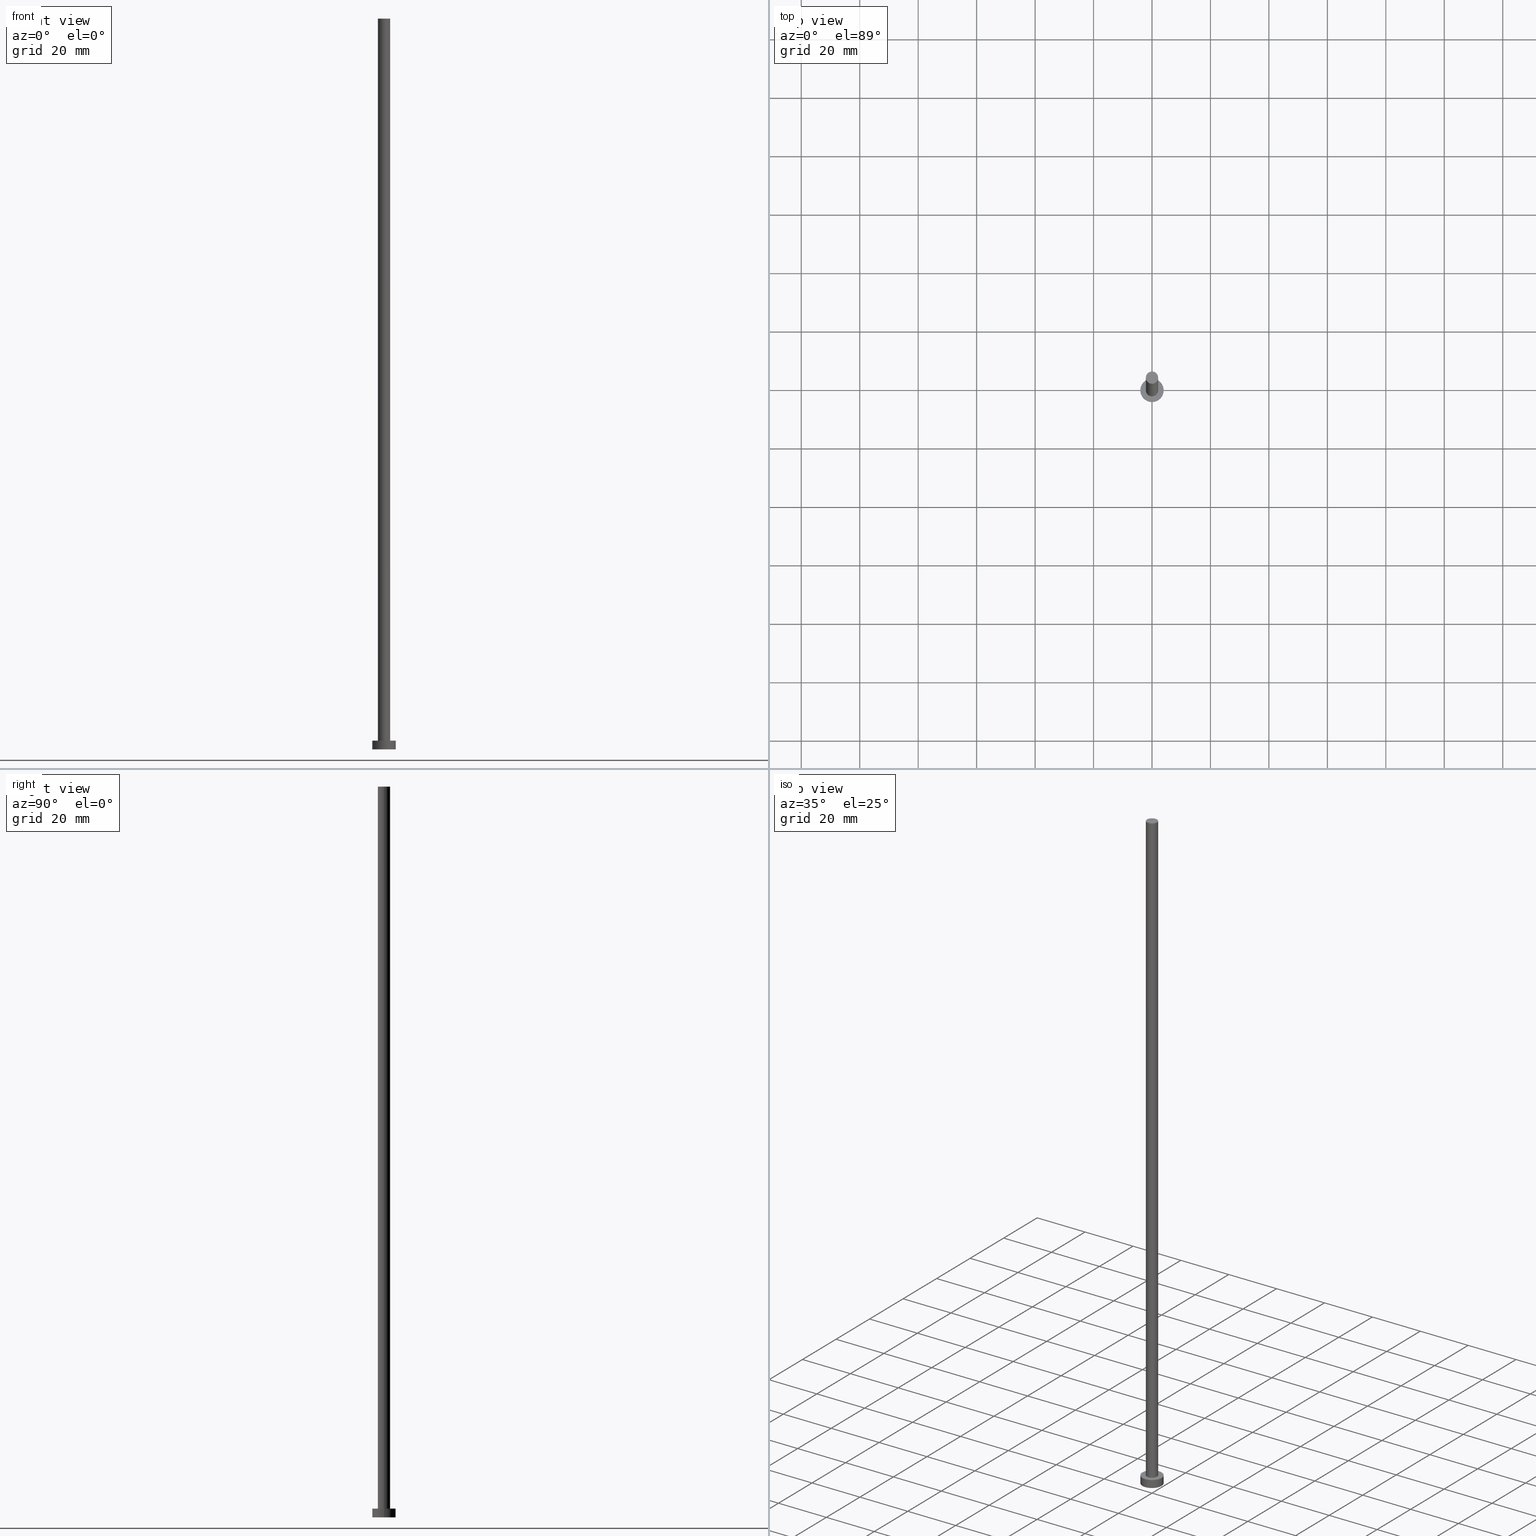
[diagram: canonical four-view strip — front | top / right | iso, engineering-drawing reading convention]
A machine part, canonical four-view strip (front | top / right | iso — engineering-drawing reading convention). The complete STEP part file that produces these views, byte-faithful:
ISO-10303-21;
HEADER;
FILE_DESCRIPTION (( 'STEP AP203' ),
    '1' );
FILE_NAME ('2389.STEP',
    '2023-02-13T13:56:01',
    ( '' ),
    ( '' ),
    'SwSTEP 2.0',
    'SolidWorks 2019',
    '' );
FILE_SCHEMA (( 'CONFIG_CONTROL_DESIGN' ));
ENDSEC;

DATA;
#1 = DIRECTION ( 'NONE',  ( -0.000000000000000000, -0.000000000000000000, -1.000000000000000000 ) ) ;
#2 = DIRECTION ( 'NONE',  ( -0.000000000000000000, -0.000000000000000000, -1.000000000000000000 ) ) ;
#3 = CYLINDRICAL_SURFACE ( 'NONE', #86, 4.000000000000000000 ) ;
#4 = CIRCLE ( 'NONE', #167, 2.100000000000000089 ) ;
#5 = CALENDAR_DATE ( 2023, 13, 2 ) ;
#6 = APPROVAL_STATUS ( 'not_yet_approved' ) ;
#7 = PERSON_AND_ORGANIZATION ( #184, #26 ) ;
#8 = PERSON_AND_ORGANIZATION ( #184, #26 ) ;
#9 = EDGE_CURVE ( 'NONE', #200, #100, #247, .T. ) ;
#10 = CARTESIAN_POINT ( 'NONE',  ( 0.000000000000000000, 0.000000000000000000, 250.0000000000000000 ) ) ;
#11 = AXIS2_PLACEMENT_3D ( 'NONE', #98, #170, #246 ) ;
#12 = ORIENTED_EDGE ( 'NONE', *, *, #9, .F. ) ;
#13 = PLANE ( 'NONE',  #11 ) ;
#14 = VERTEX_POINT ( 'NONE', #118 ) ;
#15 = DATE_AND_TIME ( #41, #245 ) ;
#16 = ORIENTED_EDGE ( 'NONE', *, *, #189, .T. ) ;
#17 = CYLINDRICAL_SURFACE ( 'NONE', #244, 2.100000000000000089 ) ;
#18 = APPROVAL_ROLE ( '' ) ;
#19 = ORIENTED_EDGE ( 'NONE', *, *, #71, .F. ) ;
#20 = CC_DESIGN_SECURITY_CLASSIFICATION ( #52, ( #186 ) ) ;
#21 = DATE_AND_TIME ( #5, #90 ) ;
#22 = AXIS2_PLACEMENT_3D ( 'NONE', #131, #217, #33 ) ;
#23 = AXIS2_PLACEMENT_3D ( 'NONE', #79, #145, #193 ) ;
#24 = LOCAL_TIME ( 14, 56, 1.000000000000000000, #48 ) ;
#25 = ADVANCED_BREP_SHAPE_REPRESENTATION ( '2389', ( #54, #140 ), #173 ) ;
#26 = ORGANIZATION ( 'NEUR�EN�', 'NEUR�EN�', '' ) ;
#27 = ADVANCED_FACE ( 'NONE', ( #144 ), #17, .T. ) ;
#28 = DIRECTION ( 'NONE',  ( 0.000000000000000000, 0.000000000000000000, 1.000000000000000000 ) ) ;
#29 = LINE ( 'NONE', #214, #239 ) ;
#30 = EDGE_CURVE ( 'NONE', #253, #14, #4, .T. ) ;
#31 = EDGE_LOOP ( 'NONE', ( #60, #204, #152, #165 ) ) ;
#32 = FACE_BOUND ( 'NONE', #124, .T. ) ;
#33 = DIRECTION ( 'NONE',  ( 1.000000000000000000, 0.000000000000000000, 0.000000000000000000 ) ) ;
#34 = PRODUCT_RELATED_PRODUCT_CATEGORY ( 'detail', '', ( #83 ) ) ;
#35 = UNCERTAINTY_MEASURE_WITH_UNIT (LENGTH_MEASURE( 1.000000000000000082E-05 ), #216, 'distance_accuracy_value', 'NONE');
#36 = DIRECTION ( 'NONE',  ( -0.000000000000000000, -0.000000000000000000, -1.000000000000000000 ) ) ;
#37 = DATE_TIME_ROLE ( 'creation_date' ) ;
#38 = PERSON_AND_ORGANIZATION ( #184, #26 ) ;
#39 = PERSON_AND_ORGANIZATION ( #184, #26 ) ;
#40 = AXIS2_PLACEMENT_3D ( 'NONE', #88, #1, #67 ) ;
#41 = CALENDAR_DATE ( 2023, 13, 2 ) ;
#42 = FACE_OUTER_BOUND ( 'NONE', #31, .T. ) ;
#43 = APPLICATION_CONTEXT ( 'configuration controlled 3d designs of mechanical parts and assemblies' ) ;
#44 = PRODUCT_DEFINITION ( 'NEZN�M�', '', #186, #183 ) ;
#45 = LINE ( 'NONE', #139, #197 ) ;
#46 = CARTESIAN_POINT ( 'NONE',  ( 0.000000000000000000, 0.000000000000000000, 0.000000000000000000 ) ) ;
#47 = ADVANCED_FACE ( 'NONE', ( #102 ), #157, .T. ) ;
#48 = COORDINATED_UNIVERSAL_TIME_OFFSET ( 1, 0, .AHEAD. ) ;
#49 = CIRCLE ( 'NONE', #149, 4.000000000000000000 ) ;
#50 = APPROVAL_DATE_TIME ( #15, #206 ) ;
#51 = DIRECTION ( 'NONE',  ( 1.000000000000000000, 0.000000000000000000, -0.000000000000000000 ) ) ;
#52 = SECURITY_CLASSIFICATION ( '', '', #113 ) ;
#53 = DIRECTION ( 'NONE',  ( 0.000000000000000000, 0.000000000000000000, 1.000000000000000000 ) ) ;
#54 = MANIFOLD_SOLID_BREP ( 'P�idat vysunut�m3', #250 ) ;
#55 = CARTESIAN_POINT ( 'NONE',  ( 4.000000000000000000, 4.898587196589412829E-16, 3.000000000000000000 ) ) ;
#56 = DIRECTION ( 'NONE',  ( 0.000000000000000000, 0.000000000000000000, 1.000000000000000000 ) ) ;
#57 = DIRECTION ( 'NONE',  ( 1.000000000000000000, 0.000000000000000000, 0.000000000000000000 ) ) ;
#58 = EDGE_LOOP ( 'NONE', ( #96, #110, #81, #101 ) ) ;
#59 = CARTESIAN_POINT ( 'NONE',  ( 0.000000000000000000, 0.000000000000000000, 3.000000000000000000 ) ) ;
#60 = ORIENTED_EDGE ( 'NONE', *, *, #94, .F. ) ;
#61 = CARTESIAN_POINT ( 'NONE',  ( 0.000000000000000000, 0.000000000000000000, 250.0000000000000000 ) ) ;
#62 = DIRECTION ( 'NONE',  ( 1.000000000000000000, 0.000000000000000000, 0.000000000000000000 ) ) ;
#63 = EDGE_CURVE ( 'NONE', #185, #108, #234, .T. ) ;
#64 = COORDINATED_UNIVERSAL_TIME_OFFSET ( 1, 0, .AHEAD. ) ;
#65 = CARTESIAN_POINT ( 'NONE',  ( -4.000000000000000000, 0.000000000000000000, 0.000000000000000000 ) ) ;
#66 = MECHANICAL_CONTEXT ( 'NONE', #43, 'mechanical' ) ;
#67 = DIRECTION ( 'NONE',  ( -1.000000000000000000, 0.000000000000000000, 0.000000000000000000 ) ) ;
#68 = EDGE_CURVE ( 'NONE', #134, #185, #49, .T. ) ;
#69 = CYLINDRICAL_SURFACE ( 'NONE', #40, 4.000000000000000000 ) ;
#70 = LOCAL_TIME ( 14, 56, 1.000000000000000000, #156 ) ;
#71 = EDGE_CURVE ( 'NONE', #185, #134, #235, .T. ) ;
#72 = ORIENTED_EDGE ( 'NONE', *, *, #177, .F. ) ;
#73 = DIRECTION ( 'NONE',  ( -0.000000000000000000, -0.000000000000000000, -1.000000000000000000 ) ) ;
#74 = AXIS2_PLACEMENT_3D ( 'NONE', #135, #237, #57 ) ;
#75 = PERSON_AND_ORGANIZATION_ROLE ( 'design_owner' ) ;
#76 = EDGE_CURVE ( 'NONE', #100, #200, #95, .T. ) ;
#77 = CC_DESIGN_DATE_AND_TIME_ASSIGNMENT ( #221, #37, ( #44 ) ) ;
#78 = COORDINATED_UNIVERSAL_TIME_OFFSET ( 1, 0, .AHEAD. ) ;
#79 = CARTESIAN_POINT ( 'NONE',  ( 0.000000000000000000, 0.000000000000000000, 0.000000000000000000 ) ) ;
#80 = CARTESIAN_POINT ( 'NONE',  ( 0.000000000000000000, 0.000000000000000000, 250.0000000000000000 ) ) ;
#81 = ORIENTED_EDGE ( 'NONE', *, *, #107, .T. ) ;
#82 = DIRECTION ( 'NONE',  ( -1.000000000000000000, 0.000000000000000000, 0.000000000000000000 ) ) ;
#83 = PRODUCT ( '2389', '2389', '', ( #66 ) ) ;
#84 = CARTESIAN_POINT ( 'NONE',  ( -4.000000000000000000, 0.000000000000000000, 3.000000000000000000 ) ) ;
#85 = EDGE_CURVE ( 'NONE', #174, #108, #138, .T. ) ;
#86 = AXIS2_PLACEMENT_3D ( 'NONE', #160, #2, #223 ) ;
#87 = APPROVAL ( #252, 'NEUR�EN�' ) ;
#88 = CARTESIAN_POINT ( 'NONE',  ( 0.000000000000000000, 0.000000000000000000, 3.000000000000000000 ) ) ;
#89 = SHAPE_DEFINITION_REPRESENTATION ( #155, #25 ) ;
#90 = LOCAL_TIME ( 14, 56, 1.000000000000000000, #64 ) ;
#91 = LINE ( 'NONE', #208, #104 ) ;
#92 = ORIENTED_EDGE ( 'NONE', *, *, #177, .T. ) ;
#93 = PERSON_AND_ORGANIZATION_ROLE ( 'classification_officer' ) ;
#94 = EDGE_CURVE ( 'NONE', #14, #253, #125, .T. ) ;
#95 = CIRCLE ( 'NONE', #159, 2.100000000000000089 ) ;
#96 = ORIENTED_EDGE ( 'NONE', *, *, #63, .F. ) ;
#97 = DIRECTION ( 'NONE',  ( 1.000000000000000000, 0.000000000000000000, 0.000000000000000000 ) ) ;
#98 = CARTESIAN_POINT ( 'NONE',  ( 0.000000000000000000, 0.000000000000000000, 3.000000000000000000 ) ) ;
#99 =( NAMED_UNIT ( * ) PLANE_ANGLE_UNIT ( ) SI_UNIT ( $, .RADIAN. ) );
#100 = VERTEX_POINT ( 'NONE', #227 ) ;
#101 = ORIENTED_EDGE ( 'NONE', *, *, #85, .T. ) ;
#102 = FACE_OUTER_BOUND ( 'NONE', #153, .T. ) ;
#103 = APPROVAL_STATUS ( 'not_yet_approved' ) ;
#104 = VECTOR ( 'NONE', #73, 1000.000000000000000 ) ;
#105 = DIRECTION ( 'NONE',  ( 1.000000000000000000, 0.000000000000000000, 0.000000000000000000 ) ) ;
#106 = APPROVAL_DATE_TIME ( #21, #87 ) ;
#107 = EDGE_CURVE ( 'NONE', #134, #174, #45, .T. ) ;
#108 = VERTEX_POINT ( 'NONE', #243 ) ;
#109 = DIRECTION ( 'NONE',  ( 1.000000000000000000, 0.000000000000000000, -0.000000000000000000 ) ) ;
#110 = ORIENTED_EDGE ( 'NONE', *, *, #68, .F. ) ;
#111 = CALENDAR_DATE ( 2023, 13, 2 ) ;
#112 = ORIENTED_EDGE ( 'NONE', *, *, #30, .F. ) ;
#113 = SECURITY_CLASSIFICATION_LEVEL ( 'unclassified' ) ;
#114 = ADVANCED_FACE ( 'NONE', ( #182 ), #3, .T. ) ;
#115 = CARTESIAN_POINT ( 'NONE',  ( 0.000000000000000000, 0.000000000000000000, 3.000000000000000000 ) ) ;
#116 = ORIENTED_EDGE ( 'NONE', *, *, #231, .F. ) ;
#117 = FACE_OUTER_BOUND ( 'NONE', #151, .T. ) ;
#118 = CARTESIAN_POINT ( 'NONE',  ( 2.100000000000000089, 2.571758278209441957E-16, 250.0000000000000000 ) ) ;
#119 = AXIS2_PLACEMENT_3D ( 'NONE', #46, #188, #109 ) ;
#120 = AXIS2_PLACEMENT_3D ( 'NONE', #10, #226, #105 ) ;
#121 = ADVANCED_FACE ( 'NONE', ( #179 ), #69, .T. ) ;
#122 = FACE_OUTER_BOUND ( 'NONE', #187, .T. ) ;
#123 = EDGE_LOOP ( 'NONE', ( #19, #248, #92, #141 ) ) ;
#124 = EDGE_LOOP ( 'NONE', ( #238, #12 ) ) ;
#125 = CIRCLE ( 'NONE', #120, 2.100000000000000089 ) ;
#126 = CC_DESIGN_PERSON_AND_ORGANIZATION_ASSIGNMENT ( #7, #93, ( #52 ) ) ;
#127 = PLANE ( 'NONE',  #119 ) ;
#128 = CC_DESIGN_APPROVAL ( #206, ( #186 ) ) ;
#129 = DIRECTION ( 'NONE',  ( 0.000000000000000000, 0.000000000000000000, 1.000000000000000000 ) ) ;
#130 = CARTESIAN_POINT ( 'NONE',  ( 2.100000000000000089, 2.571758278209441957E-16, 3.000000000000000000 ) ) ;
#131 = CARTESIAN_POINT ( 'NONE',  ( 0.000000000000000000, 0.000000000000000000, 3.000000000000000000 ) ) ;
#132 = CARTESIAN_POINT ( 'NONE',  ( 0.000000000000000000, 0.000000000000000000, 3.000000000000000000 ) ) ;
#133 = DIRECTION ( 'NONE',  ( -0.000000000000000000, -0.000000000000000000, -1.000000000000000000 ) ) ;
#134 = VERTEX_POINT ( 'NONE', #84 ) ;
#135 = CARTESIAN_POINT ( 'NONE',  ( 0.000000000000000000, 0.000000000000000000, 0.000000000000000000 ) ) ;
#136 = CALENDAR_DATE ( 2023, 13, 2 ) ;
#137 = CC_DESIGN_APPROVAL ( #87, ( #52 ) ) ;
#138 = CIRCLE ( 'NONE', #23, 4.000000000000000000 ) ;
#139 = CARTESIAN_POINT ( 'NONE',  ( -4.000000000000000000, 0.000000000000000000, 3.000000000000000000 ) ) ;
#140 = AXIS2_PLACEMENT_3D ( 'NONE', #175, #178, #62 ) ;
#141 = ORIENTED_EDGE ( 'NONE', *, *, #107, .F. ) ;
#142 = CC_DESIGN_DATE_AND_TIME_ASSIGNMENT ( #166, #199, ( #52 ) ) ;
#143 = CARTESIAN_POINT ( 'NONE',  ( -2.100000000000000089, 0.000000000000000000, 250.0000000000000000 ) ) ;
#144 = FACE_OUTER_BOUND ( 'NONE', #163, .T. ) ;
#145 = DIRECTION ( 'NONE',  ( 0.000000000000000000, 0.000000000000000000, 1.000000000000000000 ) ) ;
#146 = ADVANCED_FACE ( 'NONE', ( #42 ), #154, .T. ) ;
#147 = PERSON_AND_ORGANIZATION_ROLE ( 'creator' ) ;
#148 = CALENDAR_DATE ( 2023, 13, 2 ) ;
#149 = AXIS2_PLACEMENT_3D ( 'NONE', #115, #56, #97 ) ;
#150 = DIRECTION ( 'NONE',  ( -0.000000000000000000, -0.000000000000000000, -1.000000000000000000 ) ) ;
#151 = EDGE_LOOP ( 'NONE', ( #195, #236 ) ) ;
#152 = ORIENTED_EDGE ( 'NONE', *, *, #9, .T. ) ;
#153 = EDGE_LOOP ( 'NONE', ( #191, #198 ) ) ;
#154 = CYLINDRICAL_SURFACE ( 'NONE', #251, 2.100000000000000089 ) ;
#155 = PRODUCT_DEFINITION_SHAPE ( 'NONE', 'NONE',  #44 ) ;
#156 = COORDINATED_UNIVERSAL_TIME_OFFSET ( 1, 0, .AHEAD. ) ;
#157 = PLANE ( 'NONE',  #190 ) ;
#158 = APPROVAL_DATE_TIME ( #210, #241 ) ;
#159 = AXIS2_PLACEMENT_3D ( 'NONE', #132, #28, #254 ) ;
#160 = CARTESIAN_POINT ( 'NONE',  ( 0.000000000000000000, 0.000000000000000000, 3.000000000000000000 ) ) ;
#161 = CC_DESIGN_PERSON_AND_ORGANIZATION_ASSIGNMENT ( #202, #180, ( #44 ) ) ;
#162 = ORIENTED_EDGE ( 'NONE', *, *, #76, .T. ) ;
#163 = EDGE_LOOP ( 'NONE', ( #116, #112, #16, #162 ) ) ;
#164 = APPLICATION_PROTOCOL_DEFINITION ( 'international standard', 'config_control_design', 1994, #192 ) ;
#165 = ORIENTED_EDGE ( 'NONE', *, *, #189, .F. ) ;
#166 = DATE_AND_TIME ( #148, #249 ) ;
#167 = AXIS2_PLACEMENT_3D ( 'NONE', #61, #218, #205 ) ;
#168 = DIRECTION ( 'NONE',  ( 1.000000000000000000, 0.000000000000000000, 0.000000000000000000 ) ) ;
#169 = CC_DESIGN_PERSON_AND_ORGANIZATION_ASSIGNMENT ( #39, #75, ( #83 ) ) ;
#170 = DIRECTION ( 'NONE',  ( 0.000000000000000000, 0.000000000000000000, 1.000000000000000000 ) ) ;
#171 = PERSON_AND_ORGANIZATION ( #184, #26 ) ;
#172 = CC_DESIGN_APPROVAL ( #241, ( #44 ) ) ;
#173 =( GEOMETRIC_REPRESENTATION_CONTEXT ( 3 ) GLOBAL_UNCERTAINTY_ASSIGNED_CONTEXT ( ( #35 ) ) GLOBAL_UNIT_ASSIGNED_CONTEXT ( ( #216, #99, #255 ) ) REPRESENTATION_CONTEXT ( 'NONE', 'WORKASPACE' ) );
#174 = VERTEX_POINT ( 'NONE', #65 ) ;
#175 = CARTESIAN_POINT ( 'NONE',  ( 0.000000000000000000, 0.000000000000000000, 0.000000000000000000 ) ) ;
#176 = DIRECTION ( 'NONE',  ( -0.000000000000000000, -0.000000000000000000, -1.000000000000000000 ) ) ;
#177 = EDGE_CURVE ( 'NONE', #108, #174, #224, .T. ) ;
#178 = DIRECTION ( 'NONE',  ( 0.000000000000000000, 0.000000000000000000, 1.000000000000000000 ) ) ;
#179 = FACE_OUTER_BOUND ( 'NONE', #123, .T. ) ;
#180 = PERSON_AND_ORGANIZATION_ROLE ( 'creator' ) ;
#181 = COORDINATED_UNIVERSAL_TIME_OFFSET ( 1, 0, .AHEAD. ) ;
#182 = FACE_OUTER_BOUND ( 'NONE', #58, .T. ) ;
#183 = DESIGN_CONTEXT ( 'detailed design', #192, 'design' ) ;
#184 = PERSON ( 'NEUR�EN�', 'NEUR�EN�', 'NEUR�EN�', ('NEUR�EN�'), ('NEUR�EN�'), ('NEUR�EN�') ) ;
#185 = VERTEX_POINT ( 'NONE', #55 ) ;
#186 = PRODUCT_DEFINITION_FORMATION_WITH_SPECIFIED_SOURCE ( 'LIBOVOLN�', '', #83, .NOT_KNOWN. ) ;
#187 = EDGE_LOOP ( 'NONE', ( #240, #72 ) ) ;
#188 = DIRECTION ( 'NONE',  ( 0.000000000000000000, 0.000000000000000000, 1.000000000000000000 ) ) ;
#189 = EDGE_CURVE ( 'NONE', #253, #100, #29, .T. ) ;
#190 = AXIS2_PLACEMENT_3D ( 'NONE', #211, #129, #51 ) ;
#191 = ORIENTED_EDGE ( 'NONE', *, *, #30, .T. ) ;
#192 = APPLICATION_CONTEXT ( 'configuration controlled 3d designs of mechanical parts and assemblies' ) ;
#193 = DIRECTION ( 'NONE',  ( 1.000000000000000000, 0.000000000000000000, 0.000000000000000000 ) ) ;
#194 = DIRECTION ( 'NONE',  ( -0.000000000000000000, -0.000000000000000000, -1.000000000000000000 ) ) ;
#195 = ORIENTED_EDGE ( 'NONE', *, *, #68, .T. ) ;
#196 = CC_DESIGN_PERSON_AND_ORGANIZATION_ASSIGNMENT ( #228, #207, ( #186 ) ) ;
#197 = VECTOR ( 'NONE', #176, 1000.000000000000000 ) ;
#198 = ORIENTED_EDGE ( 'NONE', *, *, #94, .T. ) ;
#199 = DATE_TIME_ROLE ( 'classification_date' ) ;
#200 = VERTEX_POINT ( 'NONE', #130 ) ;
#201 = APPROVAL_ROLE ( '' ) ;
#202 = PERSON_AND_ORGANIZATION ( #184, #26 ) ;
#203 = APPROVAL_PERSON_ORGANIZATION ( #171, #87, #201 ) ;
#204 = ORIENTED_EDGE ( 'NONE', *, *, #231, .T. ) ;
#205 = DIRECTION ( 'NONE',  ( 1.000000000000000000, 0.000000000000000000, 0.000000000000000000 ) ) ;
#206 = APPROVAL ( #103, 'NEUR�EN�' ) ;
#207 = PERSON_AND_ORGANIZATION_ROLE ( 'design_supplier' ) ;
#208 = CARTESIAN_POINT ( 'NONE',  ( 2.100000000000000089, 2.571758278209441957E-16, 250.0000000000000000 ) ) ;
#209 = AXIS2_PLACEMENT_3D ( 'NONE', #59, #53, #168 ) ;
#210 = DATE_AND_TIME ( #111, #24 ) ;
#211 = CARTESIAN_POINT ( 'NONE',  ( 0.000000000000000000, 0.000000000000000000, 250.0000000000000000 ) ) ;
#212 = APPROVAL_PERSON_ORGANIZATION ( #38, #206, #18 ) ;
#213 = CARTESIAN_POINT ( 'NONE',  ( 4.000000000000000000, 4.898587196589412829E-16, 3.000000000000000000 ) ) ;
#214 = CARTESIAN_POINT ( 'NONE',  ( -2.100000000000000089, 0.000000000000000000, 250.0000000000000000 ) ) ;
#215 = ADVANCED_FACE ( 'NONE', ( #32, #117 ), #13, .T. ) ;
#216 =( LENGTH_UNIT ( ) NAMED_UNIT ( * ) SI_UNIT ( .MILLI., .METRE. ) );
#217 = DIRECTION ( 'NONE',  ( 0.000000000000000000, 0.000000000000000000, 1.000000000000000000 ) ) ;
#218 = DIRECTION ( 'NONE',  ( 0.000000000000000000, 0.000000000000000000, 1.000000000000000000 ) ) ;
#219 = APPLICATION_PROTOCOL_DEFINITION ( 'international standard', 'config_control_design', 1994, #43 ) ;
#220 = DIRECTION ( 'NONE',  ( -1.000000000000000000, 0.000000000000000000, 0.000000000000000000 ) ) ;
#221 = DATE_AND_TIME ( #136, #70 ) ;
#222 = APPROVAL_PERSON_ORGANIZATION ( #229, #241, #230 ) ;
#223 = DIRECTION ( 'NONE',  ( -1.000000000000000000, 0.000000000000000000, 0.000000000000000000 ) ) ;
#224 = CIRCLE ( 'NONE', #74, 4.000000000000000000 ) ;
#225 = ADVANCED_FACE ( 'NONE', ( #122 ), #127, .F. ) ;
#226 = DIRECTION ( 'NONE',  ( 0.000000000000000000, 0.000000000000000000, 1.000000000000000000 ) ) ;
#227 = CARTESIAN_POINT ( 'NONE',  ( -2.100000000000000089, 0.000000000000000000, 3.000000000000000000 ) ) ;
#228 = PERSON_AND_ORGANIZATION ( #184, #26 ) ;
#229 = PERSON_AND_ORGANIZATION ( #184, #26 ) ;
#230 = APPROVAL_ROLE ( '' ) ;
#231 = EDGE_CURVE ( 'NONE', #14, #200, #91, .T. ) ;
#232 = VECTOR ( 'NONE', #150, 1000.000000000000000 ) ;
#233 = CC_DESIGN_PERSON_AND_ORGANIZATION_ASSIGNMENT ( #8, #147, ( #186 ) ) ;
#234 = LINE ( 'NONE', #213, #232 ) ;
#235 = CIRCLE ( 'NONE', #209, 4.000000000000000000 ) ;
#236 = ORIENTED_EDGE ( 'NONE', *, *, #71, .T. ) ;
#237 = DIRECTION ( 'NONE',  ( 0.000000000000000000, 0.000000000000000000, 1.000000000000000000 ) ) ;
#238 = ORIENTED_EDGE ( 'NONE', *, *, #76, .F. ) ;
#239 = VECTOR ( 'NONE', #194, 1000.000000000000000 ) ;
#240 = ORIENTED_EDGE ( 'NONE', *, *, #85, .F. ) ;
#241 = APPROVAL ( #6, 'NEUR�EN�' ) ;
#242 = CARTESIAN_POINT ( 'NONE',  ( 0.000000000000000000, 0.000000000000000000, 250.0000000000000000 ) ) ;
#243 = CARTESIAN_POINT ( 'NONE',  ( 4.000000000000000000, 4.898587196589412829E-16, 0.000000000000000000 ) ) ;
#244 = AXIS2_PLACEMENT_3D ( 'NONE', #80, #133, #82 ) ;
#245 = LOCAL_TIME ( 14, 56, 1.000000000000000000, #181 ) ;
#246 = DIRECTION ( 'NONE',  ( 1.000000000000000000, 0.000000000000000000, -0.000000000000000000 ) ) ;
#247 = CIRCLE ( 'NONE', #22, 2.100000000000000089 ) ;
#248 = ORIENTED_EDGE ( 'NONE', *, *, #63, .T. ) ;
#249 = LOCAL_TIME ( 14, 56, 1.000000000000000000, #78 ) ;
#250 = CLOSED_SHELL ( 'NONE', ( #146, #121, #114, #215, #225, #27, #47 ) ) ;
#251 = AXIS2_PLACEMENT_3D ( 'NONE', #242, #36, #220 ) ;
#252 = APPROVAL_STATUS ( 'not_yet_approved' ) ;
#253 = VERTEX_POINT ( 'NONE', #143 ) ;
#254 = DIRECTION ( 'NONE',  ( 1.000000000000000000, 0.000000000000000000, 0.000000000000000000 ) ) ;
#255 =( NAMED_UNIT ( * ) SI_UNIT ( $, .STERADIAN. ) SOLID_ANGLE_UNIT ( ) );
ENDSEC;
END-ISO-10303-21;
